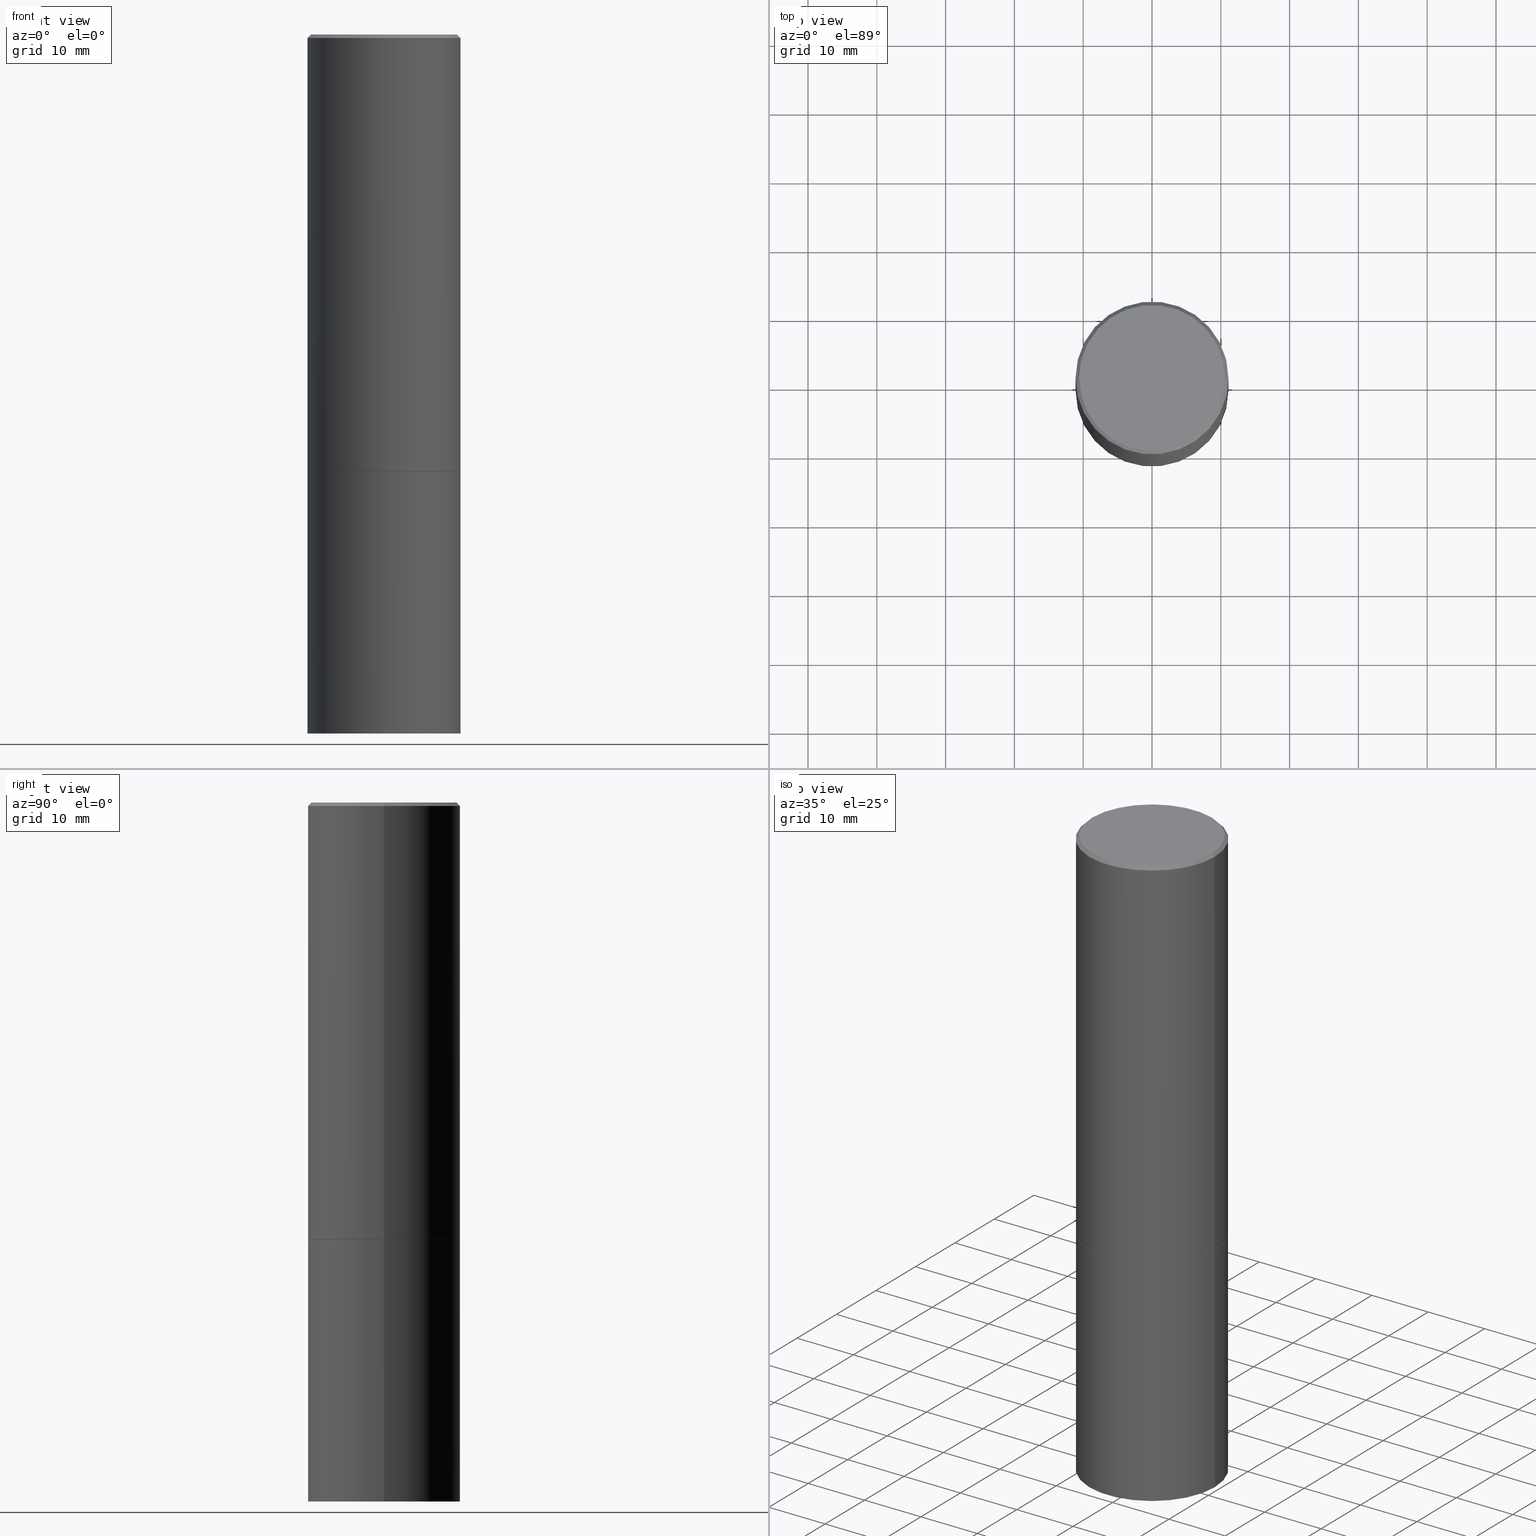
[diagram: canonical four-view strip — front | top / right | iso, engineering-drawing reading convention]
A machine part, canonical four-view strip (front | top / right | iso — engineering-drawing reading convention). The complete STEP part file that produces these views, byte-faithful:
ISO-10303-21;
HEADER;
FILE_DESCRIPTION (( 'STEP AP203' ),
    '1' );
FILE_NAME ('39773.STEP',
    '2024-02-28T01:23:37',
    ( '' ),
    ( '' ),
    'SwSTEP 2.0',
    'SolidWorks 2023',
    '' );
FILE_SCHEMA (( 'CONFIG_CONTROL_DESIGN' ));
ENDSEC;

DATA;
#1 = FACE_OUTER_BOUND ( 'NONE', #352, .T. ) ;
#2 = EDGE_LOOP ( 'NONE', ( #211, #153 ) ) ;
#3 = DIRECTION ( 'NONE',  ( -2.445468806185136597E-29, 3.491481338843145583E-15, 1.000000000000000000 ) ) ;
#4 = ORIENTED_EDGE ( 'NONE', *, *, #165, .F. ) ;
#5 = AXIS2_PLACEMENT_3D ( 'NONE', #123, #152, #31 ) ;
#6 = CC_DESIGN_DATE_AND_TIME_ASSIGNMENT ( #84, #365, ( #147 ) ) ;
#7 = CARTESIAN_POINT ( 'NONE',  ( 0.4375000000000000000, -3.055046171487741686E-15, 2.133327339410721769E-29 ) ) ;
#8 = ORIENTED_EDGE ( 'NONE', *, *, #76, .F. ) ;
#9 = DIRECTION ( 'NONE',  ( -1.000000000000000000, 6.982962677686265922E-15, -4.876176775795935793E-29 ) ) ;
#10 = ORIENTED_EDGE ( 'NONE', *, *, #144, .T. ) ;
#11 = FACE_OUTER_BOUND ( 'NONE', #43, .T. ) ;
#12 = VERTEX_POINT ( 'NONE', #290 ) ;
#13 = CARTESIAN_POINT ( 'NONE',  ( -0.4375000000000000000, 3.108624468950438313E-15, -2.152034101986521245E-29 ) ) ;
#14 = DATE_AND_TIME ( #273, #207 ) ;
#15 = DATE_TIME_ROLE ( 'creation_date' ) ;
#16 = DIRECTION ( 'NONE',  ( 2.445468806185136597E-29, -3.491481338843145583E-15, -1.000000000000000000 ) ) ;
#17 = CC_DESIGN_APPROVAL ( #80, ( #116 ) ) ;
#18 = EDGE_CURVE ( 'NONE', #232, #255, #40, .T. ) ;
#19 = PLANE ( 'NONE',  #280 ) ;
#20 = PRODUCT ( '39773', '39773', '', ( #360 ) ) ;
#21 = DIRECTION ( 'NONE',  ( -1.000000000000000000, 6.982962677686265922E-15, -4.876176775795935793E-29 ) ) ;
#22 = DATE_AND_TIME ( #279, #353 ) ;
#23 = EDGE_CURVE ( 'NONE', #236, #94, #259, .T. ) ;
#24 = CIRCLE ( 'NONE', #128, 0.4374999999999998335 ) ;
#25 = AXIS2_PLACEMENT_3D ( 'NONE', #231, #316, #343 ) ;
#26 = PERSON_AND_ORGANIZATION_ROLE ( 'classification_officer' ) ;
#27 = APPROVAL_ROLE ( '' ) ;
#28 = CONICAL_SURFACE ( 'NONE', #241, 0.4364999999999999991, 0.7853981633974824739 ) ;
#29 = FACE_OUTER_BOUND ( 'NONE', #263, .T. ) ;
#30 = AXIS2_PLACEMENT_3D ( 'NONE', #284, #127, #311 ) ;
#31 = DIRECTION ( 'NONE',  ( 1.000000000000000000, -6.982962677686266711E-15, 0.000000000000000000 ) ) ;
#32 = ORIENTED_EDGE ( 'NONE', *, *, #328, .T. ) ;
#33 = DIRECTION ( 'NONE',  ( 1.000000000000000000, -6.982962677686267499E-15, 0.000000000000000000 ) ) ;
#34 = VERTEX_POINT ( 'NONE', #294 ) ;
#35 = APPROVAL ( #72, 'UNSPECIFIED' ) ;
#36 = CARTESIAN_POINT ( 'NONE',  ( 6.111226546656657010E-29, -8.725211865769021935E-15, -2.499000000000000110 ) ) ;
#37 = VERTEX_POINT ( 'NONE', #195 ) ;
#38 = AXIS2_PLACEMENT_3D ( 'NONE', #210, #150, #160 ) ;
#39 = CARTESIAN_POINT ( 'NONE',  ( 4.890937612370297681E-31, -6.982962677686324889E-17, -0.02000000000000009756 ) ) ;
#40 = LINE ( 'NONE', #218, #337 ) ;
#41 = CC_DESIGN_PERSON_AND_ORGANIZATION_ASSIGNMENT ( #166, #271, ( #103 ) ) ;
#42 = DIRECTION ( 'NONE',  ( -2.445468806185136597E-29, 3.491481338843145583E-15, 1.000000000000000000 ) ) ;
#43 = EDGE_LOOP ( 'NONE', ( #238, #70, #187, #161 ) ) ;
#44 = DIRECTION ( 'NONE',  ( 1.000000000000000000, -6.982962677686267499E-15, 0.000000000000000000 ) ) ;
#45 = AXIS2_PLACEMENT_3D ( 'NONE', #354, #244, #357 ) ;
#46 = LINE ( 'NONE', #269, #295 ) ;
#47 = CARTESIAN_POINT ( 'NONE',  ( 6.113672015462842613E-29, -8.728703347107864943E-15, -2.500000000000000000 ) ) ;
#48 = MANIFOLD_SOLID_BREP ( 'Body-Move/Copy2[1]', #120 ) ;
#49 =( NAMED_UNIT ( * ) PLANE_ANGLE_UNIT ( ) SI_UNIT ( $, .RADIAN. ) );
#50 = DIRECTION ( 'NONE',  ( 0.7071067811865715536, -2.468850131082509496E-15, 0.7071067811865232589 ) ) ;
#51 = DIRECTION ( 'NONE',  ( -2.438088387897960049E-29, 3.491481338843145188E-15, 1.000000000000000000 ) ) ;
#52 = PLANE ( 'NONE',  #312 ) ;
#53 = PERSON_AND_ORGANIZATION ( #197, #228 ) ;
#54 = DIRECTION ( 'NONE',  ( -0.7071067811865467956, 2.468850131082249172E-15, -0.7071067811865482389 ) ) ;
#55 = CALENDAR_DATE ( 2024, 27, 2 ) ;
#56 = EDGE_CURVE ( 'NONE', #94, #319, #139, .T. ) ;
#57 = AXIS2_PLACEMENT_3D ( 'NONE', #47, #272, #135 ) ;
#58 = CARTESIAN_POINT ( 'NONE',  ( 0.4375000000000000000, -1.702097152686032402E-14, -4.000000000000000000 ) ) ;
#59 = CC_DESIGN_APPROVAL ( #149, ( #147 ) ) ;
#60 = CYLINDRICAL_SURFACE ( 'NONE', #247, 0.4374999999999997780 ) ;
#61 = VERTEX_POINT ( 'NONE', #131 ) ;
#62 = CARTESIAN_POINT ( 'NONE',  ( 0.4374999999999997224, -3.071297500801906385E-15, -0.02000000000000009756 ) ) ;
#63 = EDGE_LOOP ( 'NONE', ( #243, #8, #10, #65 ) ) ;
#64 = CARTESIAN_POINT ( 'NONE',  ( 0.4374999999999998335, -1.178025803725676362E-14, -2.499000000000000110 ) ) ;
#65 = ORIENTED_EDGE ( 'NONE', *, *, #256, .T. ) ;
#66 = DIRECTION ( 'NONE',  ( -0.7071067811865715536, 7.493145998870439357E-15, 0.7071067811865232589 ) ) ;
#67 = VERTEX_POINT ( 'NONE', #221 ) ;
#68 = ADVANCED_FACE ( 'NONE', ( #329 ), #202, .T. ) ;
#69 = CARTESIAN_POINT ( 'NONE',  ( 6.113672015462842613E-29, -8.728703347107864943E-15, -2.500000000000000000 ) ) ;
#70 = ORIENTED_EDGE ( 'NONE', *, *, #176, .T. ) ;
#71 = UNCERTAINTY_MEASURE_WITH_UNIT (LENGTH_MEASURE( 1.000000000000000082E-05 ), #300, 'distance_accuracy_value', 'NONE');
#72 = APPROVAL_STATUS ( 'not_yet_approved' ) ;
#73 = CIRCLE ( 'NONE', #157, 0.4375000000000000000 ) ;
#74 = CC_DESIGN_SECURITY_CLASSIFICATION ( #147, ( #116 ) ) ;
#75 = PERSON_AND_ORGANIZATION ( #197, #228 ) ;
#76 = EDGE_CURVE ( 'NONE', #37, #34, #320, .T. ) ;
#77 = CALENDAR_DATE ( 2024, 27, 2 ) ;
#78 = CARTESIAN_POINT ( 'NONE',  ( 0.4374999999999997780, -3.055046171487740108E-15, 2.133327339410720928E-29 ) ) ;
#79 = AXIS2_PLACEMENT_3D ( 'NONE', #278, #143, #85 ) ;
#80 = APPROVAL ( #114, 'UNSPECIFIED' ) ;
#81 = PERSON_AND_ORGANIZATION ( #197, #228 ) ;
#82 = PRODUCT_DEFINITION_SHAPE ( 'NONE', 'NONE',  #103 ) ;
#83 = CARTESIAN_POINT ( 'NONE',  ( -0.4374999999999997224, 2.985216544710876416E-15, -0.02000000000000009756 ) ) ;
#84 = DATE_AND_TIME ( #198, #338 ) ;
#85 = DIRECTION ( 'NONE',  ( -1.000000000000000000, 6.982962677686265922E-15, -4.876176775795935793E-29 ) ) ;
#86 = APPROVAL_PERSON_ORGANIZATION ( #204, #149, #141 ) ;
#87 = EDGE_CURVE ( 'NONE', #319, #253, #307, .T. ) ;
#88 = DIRECTION ( 'NONE',  ( 1.000000000000000000, -6.982962677686267499E-15, 0.000000000000000000 ) ) ;
#89 = EDGE_CURVE ( 'NONE', #255, #12, #251, .T. ) ;
#90 = LINE ( 'NONE', #62, #234 ) ;
#91 = CIRCLE ( 'NONE', #38, 0.4375000000000000000 ) ;
#92 = EDGE_LOOP ( 'NONE', ( #32, #240, #215, #122 ) ) ;
#93 = DIRECTION ( 'NONE',  ( -2.445468806185136597E-29, 3.491481338843145583E-15, 1.000000000000000000 ) ) ;
#94 = VERTEX_POINT ( 'NONE', #224 ) ;
#95 = DIRECTION ( 'NONE',  ( 1.000000000000000000, -6.982962677686266711E-15, 0.000000000000000000 ) ) ;
#96 = EDGE_LOOP ( 'NONE', ( #181, #98 ) ) ;
#97 = DIRECTION ( 'NONE',  ( 1.000000000000000000, -6.982962677686266711E-15, 4.876176775795935232E-29 ) ) ;
#98 = ORIENTED_EDGE ( 'NONE', *, *, #336, .F. ) ;
#99 = EDGE_CURVE ( 'NONE', #255, #61, #333, .T. ) ;
#100 = EDGE_LOOP ( 'NONE', ( #317, #185, #163, #209 ) ) ;
#101 = DIRECTION ( 'NONE',  ( -2.445468806185136877E-29, 3.491481338843145188E-15, 1.000000000000000000 ) ) ;
#102 = DIRECTION ( 'NONE',  ( -2.445468806185136877E-29, 3.491481338843145188E-15, 1.000000000000000000 ) ) ;
#103 = PRODUCT_DEFINITION ( 'UNKNOWN', '', #116, #325 ) ;
#104 = CYLINDRICAL_SURFACE ( 'NONE', #130, 0.4374999999999997780 ) ;
#105 =( GEOMETRIC_REPRESENTATION_CONTEXT ( 3 ) GLOBAL_UNCERTAINTY_ASSIGNED_CONTEXT ( ( #71 ) ) GLOBAL_UNIT_ASSIGNED_CONTEXT ( ( #300, #49, #220 ) ) REPRESENTATION_CONTEXT ( 'NONE', 'WORKASPACE' ) );
#106 = APPROVAL_DATE_TIME ( #359, #35 ) ;
#107 = DIRECTION ( 'NONE',  ( 1.000000000000000000, -6.982962677686267499E-15, 0.000000000000000000 ) ) ;
#108 = DIRECTION ( 'NONE',  ( -2.445468806185136597E-29, 3.491481338843145583E-15, 1.000000000000000000 ) ) ;
#109 = CC_DESIGN_PERSON_AND_ORGANIZATION_ASSIGNMENT ( #193, #326, ( #20 ) ) ;
#110 = APPROVAL_DATE_TIME ( #310, #80 ) ;
#111 = ADVANCED_BREP_SHAPE_REPRESENTATION ( '39773', ( #48, #288, #142 ), #105 ) ;
#112 = CLOSED_SHELL ( 'NONE', ( #229, #356, #68, #282, #275, #140, #340, #159 ) ) ;
#113 = AXIS2_PLACEMENT_3D ( 'NONE', #289, #291, #349 ) ;
#114 = APPROVAL_STATUS ( 'not_yet_approved' ) ;
#115 = COORDINATED_UNIVERSAL_TIME_OFFSET ( 5, 0, .BEHIND. ) ;
#116 = PRODUCT_DEFINITION_FORMATION_WITH_SPECIFIED_SOURCE ( 'ANY', '', #20, .NOT_KNOWN. ) ;
#117 = ADVANCED_FACE ( 'NONE', ( #250 ), #52, .T. ) ;
#118 = CARTESIAN_POINT ( 'NONE',  ( -0.4364999999999999991, -5.621885851166806024E-15, -2.500000000000000000 ) ) ;
#119 = ORIENTED_EDGE ( 'NONE', *, *, #87, .T. ) ;
#120 = CLOSED_SHELL ( 'NONE', ( #321, #117, #174, #216 ) ) ;
#121 = FACE_OUTER_BOUND ( 'NONE', #283, .T. ) ;
#122 = ORIENTED_EDGE ( 'NONE', *, *, #18, .F. ) ;
#123 = CARTESIAN_POINT ( 'NONE',  ( 4.890937612370297681E-31, -6.982962677686324889E-17, -0.02000000000000009756 ) ) ;
#124 = EDGE_LOOP ( 'NONE', ( #355, #179, #287, #213 ) ) ;
#125 = ORIENTED_EDGE ( 'NONE', *, *, #336, .T. ) ;
#126 = APPLICATION_CONTEXT ( 'configuration controlled 3d designs of mechanical parts and assemblies' ) ;
#127 = DIRECTION ( 'NONE',  ( -2.445468806185136597E-29, 3.491481338843145583E-15, 1.000000000000000000 ) ) ;
#128 = AXIS2_PLACEMENT_3D ( 'NONE', #36, #346, #318 ) ;
#129 = ORIENTED_EDGE ( 'NONE', *, *, #18, .T. ) ;
#130 = AXIS2_PLACEMENT_3D ( 'NONE', #293, #108, #194 ) ;
#131 = CARTESIAN_POINT ( 'NONE',  ( 0.4374999999999997224, -3.071297500801906385E-15, -0.02000000000000009756 ) ) ;
#132 = CC_DESIGN_PERSON_AND_ORGANIZATION_ASSIGNMENT ( #53, #302, ( #116 ) ) ;
#133 = FACE_OUTER_BOUND ( 'NONE', #96, .T. ) ;
#134 = PERSON_AND_ORGANIZATION ( #197, #228 ) ;
#135 = DIRECTION ( 'NONE',  ( 1.000000000000000000, -6.982962677686265133E-15, 0.000000000000000000 ) ) ;
#136 = CONICAL_SURFACE ( 'NONE', #268, 0.4364999999999999991, 0.7853981633974824739 ) ;
#137 = DIRECTION ( 'NONE',  ( 1.000000000000000000, -6.982962677686265922E-15, 4.876176775795935793E-29 ) ) ;
#138 = CARTESIAN_POINT ( 'NONE',  ( 0.000000000000000000, 0.000000000000000000, 0.000000000000000000 ) ) ;
#139 = LINE ( 'NONE', #13, #358 ) ;
#140 = ADVANCED_FACE ( 'NONE', ( #29 ), #28, .T. ) ;
#141 = APPROVAL_ROLE ( '' ) ;
#142 = AXIS2_PLACEMENT_3D ( 'NONE', #138, #249, #217 ) ;
#143 = DIRECTION ( 'NONE',  ( 2.438088387897960049E-29, -3.491481338843145188E-15, -1.000000000000000000 ) ) ;
#144 = EDGE_CURVE ( 'NONE', #37, #67, #305, .T. ) ;
#145 = APPROVAL_STATUS ( 'not_yet_approved' ) ;
#146 = VECTOR ( 'NONE', #54, 39.37007874015748143 ) ;
#147 = SECURITY_CLASSIFICATION ( '', '', #304 ) ;
#148 = DIRECTION ( 'NONE',  ( -2.445468806185136597E-29, 3.491481338843145583E-15, 1.000000000000000000 ) ) ;
#149 = APPROVAL ( #145, 'UNSPECIFIED' ) ;
#150 = DIRECTION ( 'NONE',  ( -2.445468806185136597E-29, 3.491481338843145583E-15, 1.000000000000000000 ) ) ;
#151 = ORIENTED_EDGE ( 'NONE', *, *, #176, .F. ) ;
#152 = DIRECTION ( 'NONE',  ( -2.445468806185136597E-29, 3.491481338843145583E-15, 1.000000000000000000 ) ) ;
#153 = ORIENTED_EDGE ( 'NONE', *, *, #205, .T. ) ;
#154 = AXIS2_PLACEMENT_3D ( 'NONE', #245, #16, #248 ) ;
#155 = AXIS2_PLACEMENT_3D ( 'NONE', #219, #191, #332 ) ;
#156 = CARTESIAN_POINT ( 'NONE',  ( 6.113672015462842613E-29, -8.728703347107864943E-15, -2.500000000000000000 ) ) ;
#157 = AXIS2_PLACEMENT_3D ( 'NONE', #208, #42, #88 ) ;
#158 = ORIENTED_EDGE ( 'NONE', *, *, #170, .F. ) ;
#159 = ADVANCED_FACE ( 'NONE', ( #364 ), #173, .F. ) ;
#160 = DIRECTION ( 'NONE',  ( 1.000000000000000000, -6.982962677686265133E-15, 0.000000000000000000 ) ) ;
#161 = ORIENTED_EDGE ( 'NONE', *, *, #87, .F. ) ;
#162 = CARTESIAN_POINT ( 'NONE',  ( -0.4364999999999999991, -5.627184305515027638E-15, -2.500000000000000000 ) ) ;
#163 = ORIENTED_EDGE ( 'NONE', *, *, #230, .F. ) ;
#164 = CONICAL_SURFACE ( 'NONE', #25, 0.4374999999999997224, 0.7853981633974472798 ) ;
#165 = EDGE_CURVE ( 'NONE', #189, #12, #323, .T. ) ;
#166 = PERSON_AND_ORGANIZATION ( #197, #228 ) ;
#167 = DIRECTION ( 'NONE',  ( 1.000000000000000000, -6.982962677686267499E-15, 0.000000000000000000 ) ) ;
#168 = COORDINATED_UNIVERSAL_TIME_OFFSET ( 5, 0, .BEHIND. ) ;
#169 = LOCAL_TIME ( 20, 23, 37.00000000000000000, #246 ) ;
#170 = EDGE_CURVE ( 'NONE', #12, #255, #24, .T. ) ;
#171 = CARTESIAN_POINT ( 'NONE',  ( 3.055046171487839110E-15, 0.4374999999999860667, -4.000000000000001776 ) ) ;
#172 = COORDINATED_UNIVERSAL_TIME_OFFSET ( 5, 0, .BEHIND. ) ;
#173 = PLANE ( 'NONE',  #79 ) ;
#174 = ADVANCED_FACE ( 'NONE', ( #1 ), #286, .F. ) ;
#175 = CIRCLE ( 'NONE', #313, 0.4374999999999997224 ) ;
#176 = EDGE_CURVE ( 'NONE', #94, #236, #73, .T. ) ;
#177 = CARTESIAN_POINT ( 'NONE',  ( 0.4375000000000000000, -1.178374951859560505E-14, -2.500000000000000000 ) ) ;
#178 = DIRECTION ( 'NONE',  ( 0.7071067811865467956, -7.319954787623254468E-15, -0.7071067811865482389 ) ) ;
#179 = ORIENTED_EDGE ( 'NONE', *, *, #170, .T. ) ;
#180 = CARTESIAN_POINT ( 'NONE',  ( 0.000000000000000000, 0.000000000000000000, 0.000000000000000000 ) ) ;
#181 = ORIENTED_EDGE ( 'NONE', *, *, #328, .F. ) ;
#182 = CC_DESIGN_PERSON_AND_ORGANIZATION_ASSIGNMENT ( #81, #363, ( #116 ) ) ;
#183 = CIRCLE ( 'NONE', #322, 0.4364999999999999991 ) ;
#184 = CARTESIAN_POINT ( 'NONE',  ( -0.4375000000000000000, -8.238689882289784535E-15, -2.500000000000000000 ) ) ;
#185 = ORIENTED_EDGE ( 'NONE', *, *, #361, .T. ) ;
#186 = CARTESIAN_POINT ( 'NONE',  ( 3.055046171487802034E-15, 0.4374999999999912292, -2.500000000000001776 ) ) ;
#187 = ORIENTED_EDGE ( 'NONE', *, *, #225, .T. ) ;
#188 = EDGE_CURVE ( 'NONE', #34, #61, #90, .T. ) ;
#189 = VERTEX_POINT ( 'NONE', #118 ) ;
#190 = VECTOR ( 'NONE', #66, 39.37007874015748854 ) ;
#191 = DIRECTION ( 'NONE',  ( -2.445468806185136597E-29, 3.491481338843145583E-15, 1.000000000000000000 ) ) ;
#192 = CC_DESIGN_APPROVAL ( #35, ( #103 ) ) ;
#193 = PERSON_AND_ORGANIZATION ( #197, #228 ) ;
#194 = DIRECTION ( 'NONE',  ( 1.000000000000000000, -6.982962677686266711E-15, 4.876176775795935793E-29 ) ) ;
#195 = CARTESIAN_POINT ( 'NONE',  ( -0.4174999999999996492, 2.950301731322445161E-15, 4.268512490079900125E-18 ) ) ;
#196 = CARTESIAN_POINT ( 'NONE',  ( 6.111226546656657010E-29, -8.725211865769021935E-15, -2.499000000000000110 ) ) ;
#197 = PERSON ( 'UNSPECIFIED', 'UNSPECIFIED', 'UNSPECIFIED', ('UNSPECIFIED'), ('UNSPECIFIED'), ('UNSPECIFIED') ) ;
#198 = CALENDAR_DATE ( 2024, 27, 2 ) ;
#199 = CARTESIAN_POINT ( 'NONE',  ( 6.113672015462842613E-29, -8.728703347107864943E-15, -2.500000000000000000 ) ) ;
#200 = CC_DESIGN_DATE_AND_TIME_ASSIGNMENT ( #14, #15, ( #103 ) ) ;
#201 = APPROVAL_DATE_TIME ( #22, #149 ) ;
#202 = CONICAL_SURFACE ( 'NONE', #154, 0.4374999999999997224, 0.7853981633974472798 ) ;
#203 = VECTOR ( 'NONE', #235, 39.37007874015748143 ) ;
#204 = PERSON_AND_ORGANIZATION ( #197, #228 ) ;
#205 = EDGE_CURVE ( 'NONE', #34, #37, #330, .T. ) ;
#206 = CYLINDRICAL_SURFACE ( 'NONE', #30, 0.4375000000000000000 ) ;
#207 = LOCAL_TIME ( 20, 23, 37.00000000000000000, #168 ) ;
#208 = CARTESIAN_POINT ( 'NONE',  ( 9.781875224740546387E-29, -1.396592535537258233E-14, -4.000000000000000000 ) ) ;
#209 = ORIENTED_EDGE ( 'NONE', *, *, #99, .F. ) ;
#210 = CARTESIAN_POINT ( 'NONE',  ( 6.113672015462842613E-29, -8.728703347107864943E-15, -2.500000000000000000 ) ) ;
#211 = ORIENTED_EDGE ( 'NONE', *, *, #76, .T. ) ;
#212 = FACE_OUTER_BOUND ( 'NONE', #92, .T. ) ;
#213 = ORIENTED_EDGE ( 'NONE', *, *, #256, .F. ) ;
#214 = CARTESIAN_POINT ( 'NONE',  ( 6.113672015462842613E-29, -8.728703347107864943E-15, -2.500000000000000000 ) ) ;
#215 = ORIENTED_EDGE ( 'NONE', *, *, #89, .F. ) ;
#216 = ADVANCED_FACE ( 'NONE', ( #11 ), #206, .T. ) ;
#217 = DIRECTION ( 'NONE',  ( 1.000000000000000000, 0.000000000000000000, 0.000000000000000000 ) ) ;
#218 = CARTESIAN_POINT ( 'NONE',  ( 0.4364999999999999991, -1.177676655591792061E-14, -2.500000000000000000 ) ) ;
#219 = CARTESIAN_POINT ( 'NONE',  ( -1.043851414335219820E-46, 1.490343170380447200E-32, 4.268512490100411279E-18 ) ) ;
#220 =( NAMED_UNIT ( * ) SI_UNIT ( $, .STERADIAN. ) SOLID_ANGLE_UNIT ( ) );
#221 = CARTESIAN_POINT ( 'NONE',  ( -0.4374999999999997224, 2.985216544710876416E-15, -0.02000000000000009756 ) ) ;
#222 = APPROVAL_PERSON_ORGANIZATION ( #75, #35, #297 ) ;
#223 =( LENGTH_UNIT ( ) NAMED_UNIT ( * ) SI_UNIT ( $, .METRE. ) );
#224 = CARTESIAN_POINT ( 'NONE',  ( -0.4375000000000000000, -8.238689882289784535E-15, -4.000000000000000000 ) ) ;
#225 = EDGE_CURVE ( 'NONE', #236, #253, #314, .T. ) ;
#226 = FACE_OUTER_BOUND ( 'NONE', #100, .T. ) ;
#227 = AXIS2_PLACEMENT_3D ( 'NONE', #335, #270, #167 ) ;
#228 = ORGANIZATION ( 'UNSPECIFIED', 'UNSPECIFIED', '' ) ;
#229 = ADVANCED_FACE ( 'NONE', ( #212 ), #136, .T. ) ;
#230 = EDGE_CURVE ( 'NONE', #61, #67, #175, .T. ) ;
#231 = CARTESIAN_POINT ( 'NONE',  ( 4.890937612370297681E-31, -6.982962677686324889E-17, -0.02000000000000009756 ) ) ;
#232 = VERTEX_POINT ( 'NONE', #281 ) ;
#233 = AXIS2_PLACEMENT_3D ( 'NONE', #186, #264, #9 ) ;
#234 = VECTOR ( 'NONE', #178, 39.37007874015748143 ) ;
#235 = DIRECTION ( 'NONE',  ( -2.445468806185136877E-29, 3.491481338843145188E-15, 1.000000000000000000 ) ) ;
#236 = VERTEX_POINT ( 'NONE', #58 ) ;
#237 = FACE_OUTER_BOUND ( 'NONE', #124, .T. ) ;
#238 = ORIENTED_EDGE ( 'NONE', *, *, #56, .F. ) ;
#239 = DIRECTION ( 'NONE',  ( 1.000000000000000000, -6.982962677686266711E-15, 4.876176775795935793E-29 ) ) ;
#240 = ORIENTED_EDGE ( 'NONE', *, *, #165, .T. ) ;
#241 = AXIS2_PLACEMENT_3D ( 'NONE', #199, #148, #252 ) ;
#242 = DIRECTION ( 'NONE',  ( -2.445468806185136597E-29, 3.491481338843145583E-15, 1.000000000000000000 ) ) ;
#243 = ORIENTED_EDGE ( 'NONE', *, *, #188, .F. ) ;
#244 = DIRECTION ( 'NONE',  ( -2.445468806185136597E-29, 3.491481338843145583E-15, 1.000000000000000000 ) ) ;
#245 = CARTESIAN_POINT ( 'NONE',  ( 4.890937612370297681E-31, -6.982962677686324889E-17, -0.02000000000000009756 ) ) ;
#246 = COORDINATED_UNIVERSAL_TIME_OFFSET ( 5, 0, .BEHIND. ) ;
#247 = AXIS2_PLACEMENT_3D ( 'NONE', #257, #3, #239 ) ;
#248 = DIRECTION ( 'NONE',  ( -1.000000000000000000, 6.982962677686266711E-15, 0.000000000000000000 ) ) ;
#249 = DIRECTION ( 'NONE',  ( 0.000000000000000000, 0.000000000000000000, 1.000000000000000000 ) ) ;
#250 = FACE_OUTER_BOUND ( 'NONE', #366, .T. ) ;
#251 = CIRCLE ( 'NONE', #267, 0.4374999999999998335 ) ;
#252 = DIRECTION ( 'NONE',  ( 1.000000000000000000, -6.982962677686267499E-15, 0.000000000000000000 ) ) ;
#253 = VERTEX_POINT ( 'NONE', #177 ) ;
#254 = FACE_OUTER_BOUND ( 'NONE', #63, .T. ) ;
#255 = VERTEX_POINT ( 'NONE', #64 ) ;
#256 = EDGE_CURVE ( 'NONE', #67, #61, #341, .T. ) ;
#257 = CARTESIAN_POINT ( 'NONE',  ( 0.000000000000000000, 0.000000000000000000, 0.000000000000000000 ) ) ;
#258 = ORIENTED_EDGE ( 'NONE', *, *, #225, .F. ) ;
#259 = CIRCLE ( 'NONE', #227, 0.4375000000000000000 ) ;
#260 = CIRCLE ( 'NONE', #45, 0.4364999999999999991 ) ;
#261 = ORIENTED_EDGE ( 'NONE', *, *, #23, .T. ) ;
#262 = CYLINDRICAL_SURFACE ( 'NONE', #308, 0.4375000000000000000 ) ;
#263 = EDGE_LOOP ( 'NONE', ( #4, #125, #129, #158 ) ) ;
#264 = DIRECTION ( 'NONE',  ( 2.438088387897960049E-29, -3.491481338843145188E-15, -1.000000000000000000 ) ) ;
#265 = EDGE_CURVE ( 'NONE', #253, #319, #91, .T. ) ;
#266 = ORIENTED_EDGE ( 'NONE', *, *, #188, .T. ) ;
#267 = AXIS2_PLACEMENT_3D ( 'NONE', #196, #298, #107 ) ;
#268 = AXIS2_PLACEMENT_3D ( 'NONE', #156, #93, #33 ) ;
#269 = CARTESIAN_POINT ( 'NONE',  ( -0.4374999999999997780, 3.108624468950436735E-15, -2.152034101986520123E-29 ) ) ;
#270 = DIRECTION ( 'NONE',  ( -2.445468806185136597E-29, 3.491481338843145583E-15, 1.000000000000000000 ) ) ;
#271 = PERSON_AND_ORGANIZATION_ROLE ( 'creator' ) ;
#272 = DIRECTION ( 'NONE',  ( -2.445468806185136597E-29, 3.491481338843145583E-15, 1.000000000000000000 ) ) ;
#273 = CALENDAR_DATE ( 2024, 27, 2 ) ;
#274 = DIRECTION ( 'NONE',  ( -2.445468806185136877E-29, 3.491481338843145188E-15, 1.000000000000000000 ) ) ;
#275 = ADVANCED_FACE ( 'NONE', ( #237 ), #60, .T. ) ;
#276 = DIRECTION ( 'NONE',  ( 2.438088387897960049E-29, -3.491481338843145188E-15, -1.000000000000000000 ) ) ;
#277 = PERSON_AND_ORGANIZATION ( #197, #228 ) ;
#278 = CARTESIAN_POINT ( 'NONE',  ( 2.915386917934013512E-15, 0.4174999999999996492, -1.455559202721961867E-15 ) ) ;
#279 = CALENDAR_DATE ( 2024, 27, 2 ) ;
#280 = AXIS2_PLACEMENT_3D ( 'NONE', #69, #51, #137 ) ;
#281 = CARTESIAN_POINT ( 'NONE',  ( 0.4364999999999999991, -1.177676655591792061E-14, -2.500000000000000000 ) ) ;
#282 = ADVANCED_FACE ( 'NONE', ( #254 ), #164, .T. ) ;
#283 = EDGE_LOOP ( 'NONE', ( #261, #324, #347, #258 ) ) ;
#284 = CARTESIAN_POINT ( 'NONE',  ( 0.000000000000000000, 0.000000000000000000, 0.000000000000000000 ) ) ;
#285 = ORIENTED_EDGE ( 'NONE', *, *, #265, .T. ) ;
#286 = PLANE ( 'NONE',  #233 ) ;
#287 = ORIENTED_EDGE ( 'NONE', *, *, #99, .T. ) ;
#288 = MANIFOLD_SOLID_BREP ( 'Body-Move/Copy2[2]', #112 ) ;
#289 = CARTESIAN_POINT ( 'NONE',  ( -1.043851414335219820E-46, 1.490343170380447200E-32, 4.268512490100411279E-18 ) ) ;
#290 = CARTESIAN_POINT ( 'NONE',  ( -0.4374999999999998335, -1.288896277322503515E-15, -2.499000000000000110 ) ) ;
#291 = DIRECTION ( 'NONE',  ( -2.445468806185136597E-29, 3.491481338843145583E-15, 1.000000000000000000 ) ) ;
#292 = ORIENTED_EDGE ( 'NONE', *, *, #23, .F. ) ;
#293 = CARTESIAN_POINT ( 'NONE',  ( 0.000000000000000000, 0.000000000000000000, 0.000000000000000000 ) ) ;
#294 = CARTESIAN_POINT ( 'NONE',  ( 0.4174999999999996492, -2.967777707435759010E-15, 4.268512490120983292E-18 ) ) ;
#295 = VECTOR ( 'NONE', #101, 39.37007874015748143 ) ;
#296 = DIRECTION ( 'NONE',  ( -2.445468806185136597E-29, 3.491481338843145583E-15, 1.000000000000000000 ) ) ;
#297 = APPROVAL_ROLE ( '' ) ;
#298 = DIRECTION ( 'NONE',  ( -2.445468806185136597E-29, 3.491481338843145583E-15, 1.000000000000000000 ) ) ;
#299 = LENGTH_MEASURE_WITH_UNIT ( LENGTH_MEASURE( 0.02539999999999999897 ), #223 );
#300 =( CONVERSION_BASED_UNIT ( 'INCH', #299 ) LENGTH_UNIT ( ) NAMED_UNIT ( #303 ) );
#301 = APPROVAL_PERSON_ORGANIZATION ( #134, #80, #27 ) ;
#302 = PERSON_AND_ORGANIZATION_ROLE ( 'creator' ) ;
#303 = DIMENSIONAL_EXPONENTS ( 1.000000000000000000, 0.000000000000000000, 0.000000000000000000, 0.000000000000000000, 0.000000000000000000, 0.000000000000000000, 0.000000000000000000 ) ;
#304 = SECURITY_CLASSIFICATION_LEVEL ( 'unclassified' ) ;
#305 = LINE ( 'NONE', #83, #146 ) ;
#306 = SHAPE_DEFINITION_REPRESENTATION ( #82, #111 ) ;
#307 = CIRCLE ( 'NONE', #57, 0.4375000000000000000 ) ;
#308 = AXIS2_PLACEMENT_3D ( 'NONE', #180, #351, #97 ) ;
#309 = PRODUCT_RELATED_PRODUCT_CATEGORY ( 'detail', '', ( #20 ) ) ;
#310 = DATE_AND_TIME ( #55, #362 ) ;
#311 = DIRECTION ( 'NONE',  ( 1.000000000000000000, -6.982962677686266711E-15, 4.876176775795935232E-29 ) ) ;
#312 = AXIS2_PLACEMENT_3D ( 'NONE', #171, #276, #21 ) ;
#313 = AXIS2_PLACEMENT_3D ( 'NONE', #39, #242, #95 ) ;
#314 = LINE ( 'NONE', #7, #203 ) ;
#315 = ORIENTED_EDGE ( 'NONE', *, *, #144, .F. ) ;
#316 = DIRECTION ( 'NONE',  ( 2.445468806185136597E-29, -3.491481338843145583E-15, -1.000000000000000000 ) ) ;
#317 = ORIENTED_EDGE ( 'NONE', *, *, #89, .T. ) ;
#318 = DIRECTION ( 'NONE',  ( 1.000000000000000000, -6.982962677686267499E-15, 0.000000000000000000 ) ) ;
#319 = VERTEX_POINT ( 'NONE', #184 ) ;
#320 = CIRCLE ( 'NONE', #155, 0.4174999999999996492 ) ;
#321 = ADVANCED_FACE ( 'NONE', ( #121 ), #262, .T. ) ;
#322 = AXIS2_PLACEMENT_3D ( 'NONE', #214, #296, #44 ) ;
#323 = LINE ( 'NONE', #162, #190 ) ;
#324 = ORIENTED_EDGE ( 'NONE', *, *, #56, .T. ) ;
#325 = DESIGN_CONTEXT ( 'detailed design', #348, 'design' ) ;
#326 = PERSON_AND_ORGANIZATION_ROLE ( 'design_owner' ) ;
#327 = ORIENTED_EDGE ( 'NONE', *, *, #205, .F. ) ;
#328 = EDGE_CURVE ( 'NONE', #232, #189, #183, .T. ) ;
#329 = FACE_OUTER_BOUND ( 'NONE', #350, .T. ) ;
#330 = CIRCLE ( 'NONE', #113, 0.4174999999999996492 ) ;
#331 = APPLICATION_PROTOCOL_DEFINITION ( 'international standard', 'config_control_design', 1994, #348 ) ;
#332 = DIRECTION ( 'NONE',  ( 1.000000000000000000, -6.982962677686266711E-15, 4.876119722228001824E-29 ) ) ;
#333 = LINE ( 'NONE', #78, #345 ) ;
#334 = APPLICATION_PROTOCOL_DEFINITION ( 'international standard', 'config_control_design', 1994, #126 ) ;
#335 = CARTESIAN_POINT ( 'NONE',  ( 9.781875224740546387E-29, -1.396592535537258233E-14, -4.000000000000000000 ) ) ;
#336 = EDGE_CURVE ( 'NONE', #189, #232, #260, .T. ) ;
#337 = VECTOR ( 'NONE', #50, 39.37007874015748854 ) ;
#338 = LOCAL_TIME ( 20, 23, 37.00000000000000000, #115 ) ;
#339 = COORDINATED_UNIVERSAL_TIME_OFFSET ( 5, 0, .BEHIND. ) ;
#340 = ADVANCED_FACE ( 'NONE', ( #133 ), #19, .F. ) ;
#341 = CIRCLE ( 'NONE', #5, 0.4374999999999997224 ) ;
#342 = CC_DESIGN_PERSON_AND_ORGANIZATION_ASSIGNMENT ( #277, #26, ( #147 ) ) ;
#343 = DIRECTION ( 'NONE',  ( -1.000000000000000000, 6.982962677686266711E-15, 0.000000000000000000 ) ) ;
#344 = ORIENTED_EDGE ( 'NONE', *, *, #230, .T. ) ;
#345 = VECTOR ( 'NONE', #274, 39.37007874015748143 ) ;
#346 = DIRECTION ( 'NONE',  ( -2.445468806185136597E-29, 3.491481338843145583E-15, 1.000000000000000000 ) ) ;
#347 = ORIENTED_EDGE ( 'NONE', *, *, #265, .F. ) ;
#348 = APPLICATION_CONTEXT ( 'configuration controlled 3d designs of mechanical parts and assemblies' ) ;
#349 = DIRECTION ( 'NONE',  ( 1.000000000000000000, -6.982962677686266711E-15, 4.876119722228001824E-29 ) ) ;
#350 = EDGE_LOOP ( 'NONE', ( #327, #266, #344, #315 ) ) ;
#351 = DIRECTION ( 'NONE',  ( -2.445468806185136597E-29, 3.491481338843145583E-15, 1.000000000000000000 ) ) ;
#352 = EDGE_LOOP ( 'NONE', ( #285, #119 ) ) ;
#353 = LOCAL_TIME ( 20, 23, 37.00000000000000000, #339 ) ;
#354 = CARTESIAN_POINT ( 'NONE',  ( 6.113672015462842613E-29, -8.728703347107864943E-15, -2.500000000000000000 ) ) ;
#355 = ORIENTED_EDGE ( 'NONE', *, *, #361, .F. ) ;
#356 = ADVANCED_FACE ( 'NONE', ( #226 ), #104, .T. ) ;
#357 = DIRECTION ( 'NONE',  ( 1.000000000000000000, -6.982962677686267499E-15, 0.000000000000000000 ) ) ;
#358 = VECTOR ( 'NONE', #102, 39.37007874015748143 ) ;
#359 = DATE_AND_TIME ( #77, #169 ) ;
#360 = MECHANICAL_CONTEXT ( 'NONE', #126, 'mechanical' ) ;
#361 = EDGE_CURVE ( 'NONE', #12, #67, #46, .T. ) ;
#362 = LOCAL_TIME ( 20, 23, 37.00000000000000000, #172 ) ;
#363 = PERSON_AND_ORGANIZATION_ROLE ( 'design_supplier' ) ;
#364 = FACE_OUTER_BOUND ( 'NONE', #2, .T. ) ;
#365 = DATE_TIME_ROLE ( 'classification_date' ) ;
#366 = EDGE_LOOP ( 'NONE', ( #292, #151 ) ) ;
ENDSEC;
END-ISO-10303-21;
